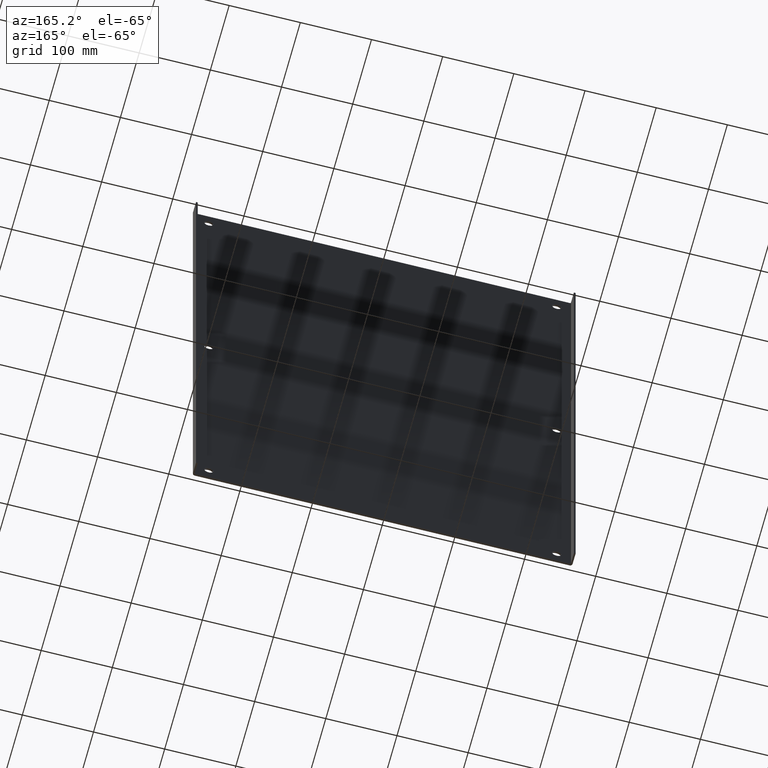
[diagram: clean part render]
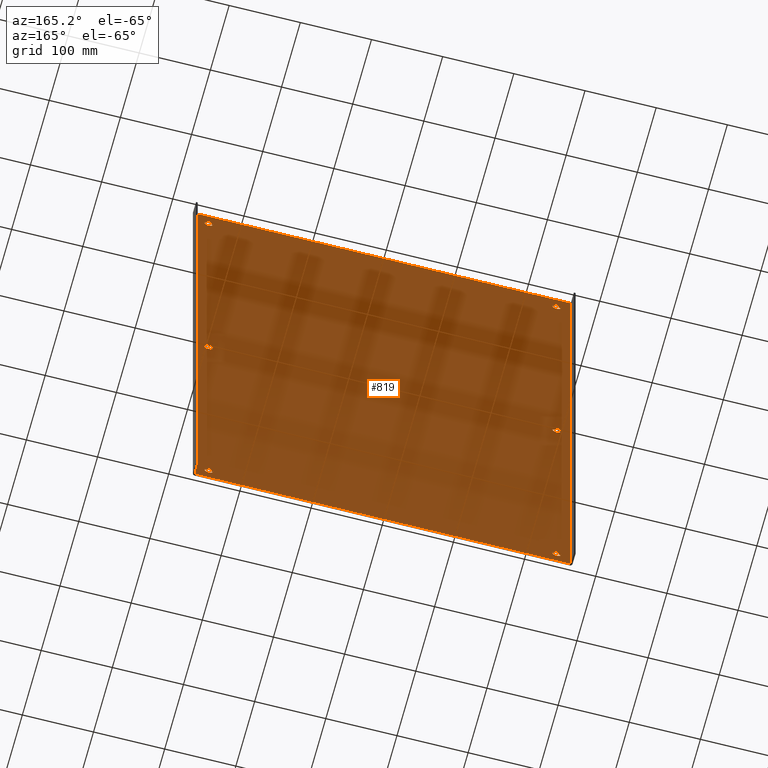
[diagram: same view with one face highlighted and labeled with its STEP entity id]
A machine part, auxiliary view. The second image highlights one B-rep face of the part: STEP entity #819.
In plain terms, the highlighted planar face has unit normal (0, -1, 0).
Its self-contained STEP definition (entity closure, byte-faithful):
#3 = ORIENTED_EDGE ( 'NONE', *, *, #547, .T. ) ;
#9 = VERTEX_POINT ( 'NONE', #845 ) ;
#12 = DIRECTION ( 'NONE',  ( 0.0000000000000000000, -1.000000000000000000, 0.0000000000000000000 ) ) ;
#16 = ORIENTED_EDGE ( 'NONE', *, *, #840, .F. ) ;
#17 = CARTESIAN_POINT ( 'NONE',  ( 10.50000000000000000, 0.09499999999999998723, 16.50000000000000000 ) ) ;
#21 = DIRECTION ( 'NONE',  ( 0.0000000000000000000, 0.0000000000000000000, -1.000000000000000000 ) ) ;
#39 = LINE ( 'NONE', #17, #582 ) ;
#52 = CIRCLE ( 'NONE', #866, 0.2500000000000008882 ) ;
#90 = DIRECTION ( 'NONE',  ( 0.0000000000000000000, -1.000000000000000000, 0.0000000000000000000 ) ) ;
#92 = ORIENTED_EDGE ( 'NONE', *, *, #471, .F. ) ;
#104 = CARTESIAN_POINT ( 'NONE',  ( -9.625000000000000000, 0.09499999999999994560, -15.87500000000000178 ) ) ;
#110 = EDGE_CURVE ( 'NONE', #721, #721, #867, .T. ) ;
#114 = FACE_BOUND ( 'NONE', #790, .T. ) ;
#130 = FACE_BOUND ( 'NONE', #264, .T. ) ;
#136 = DIRECTION ( 'NONE',  ( 0.0000000000000000000, -1.000000000000000000, 0.0000000000000000000 ) ) ;
#145 = ORIENTED_EDGE ( 'NONE', *, *, #317, .T. ) ;
#164 = CIRCLE ( 'NONE', #699, 0.2500000000000000000 ) ;
#177 = DIRECTION ( 'NONE',  ( 0.0000000000000000000, -1.000000000000000000, 0.0000000000000000000 ) ) ;
#179 = CARTESIAN_POINT ( 'NONE',  ( -10.50000000000000000, 0.09499999999999998723, -16.50000000000000000 ) ) ;
#189 = DIRECTION ( 'NONE',  ( -1.000000000000000000, -0.0000000000000000000, -1.040703997586390056E-16 ) ) ;
#192 = DIRECTION ( 'NONE',  ( 0.0000000000000000000, -1.000000000000000000, 0.0000000000000000000 ) ) ;
#198 = CARTESIAN_POINT ( 'NONE',  ( -9.625000000000000000, 0.09499999999999994560, 15.37500000000000000 ) ) ;
#218 = VERTEX_POINT ( 'NONE', #676 ) ;
#227 = VERTEX_POINT ( 'NONE', #600 ) ;
#241 = DIRECTION ( 'NONE',  ( 0.0000000000000000000, 0.0000000000000000000, -1.000000000000000000 ) ) ;
#246 = EDGE_CURVE ( 'NONE', #513, #218, #738, .T. ) ;
#248 = FACE_BOUND ( 'NONE', #951, .T. ) ;
#264 = EDGE_LOOP ( 'NONE', ( #145 ) ) ;
#292 = AXIS2_PLACEMENT_3D ( 'NONE', #695, #192, #530 ) ;
#294 = CIRCLE ( 'NONE', #401, 0.2500000000000008882 ) ;
#308 = LINE ( 'NONE', #1014, #548 ) ;
#317 = EDGE_CURVE ( 'NONE', #871, #871, #400, .T. ) ;
#323 = CIRCLE ( 'NONE', #808, 0.2500000000000008882 ) ;
#330 = DIRECTION ( 'NONE',  ( 0.0000000000000000000, 0.0000000000000000000, -1.000000000000000000 ) ) ;
#361 = AXIS2_PLACEMENT_3D ( 'NONE', #821, #177, #751 ) ;
#385 = AXIS2_PLACEMENT_3D ( 'NONE', #820, #12, #672 ) ;
#400 = CIRCLE ( 'NONE', #292, 0.2500000000000000000 ) ;
#401 = AXIS2_PLACEMENT_3D ( 'NONE', #637, #136, #955 ) ;
#407 = DIRECTION ( 'NONE',  ( 0.0000000000000000000, -1.000000000000000000, 0.0000000000000000000 ) ) ;
#412 = DIRECTION ( 'NONE',  ( -0.0000000000000000000, 0.0000000000000000000, 1.000000000000000000 ) ) ;
#416 = CARTESIAN_POINT ( 'NONE',  ( -9.625000000000000000, 0.09499999999999994560, 15.62500000000000178 ) ) ;
#426 = VERTEX_POINT ( 'NONE', #104 ) ;
#427 = CARTESIAN_POINT ( 'NONE',  ( 9.625000000000000000, 0.09499999999999994560, -5.463695987328543200E-16 ) ) ;
#460 = ORIENTED_EDGE ( 'NONE', *, *, #110, .T. ) ;
#466 = VERTEX_POINT ( 'NONE', #198 ) ;
#471 = EDGE_CURVE ( 'NONE', #227, #814, #308, .T. ) ;
#506 = PLANE ( 'NONE',  #385 ) ;
#513 = VERTEX_POINT ( 'NONE', #932 ) ;
#519 = CARTESIAN_POINT ( 'NONE',  ( 10.37499999999999822, 0.09499999999999998723, -16.50000000000000000 ) ) ;
#530 = DIRECTION ( 'NONE',  ( 0.0000000000000000000, 0.0000000000000000000, -1.000000000000000000 ) ) ;
#544 = DIRECTION ( 'NONE',  ( 0.0000000000000000000, -0.0000000000000000000, -1.000000000000000000 ) ) ;
#547 = EDGE_CURVE ( 'NONE', #426, #426, #294, .T. ) ;
#548 = VECTOR ( 'NONE', #544, 39.37007874015748143 ) ;
#554 = ORIENTED_EDGE ( 'NONE', *, *, #658, .T. ) ;
#571 = LINE ( 'NONE', #179, #1042 ) ;
#581 = DIRECTION ( 'NONE',  ( 0.0000000000000000000, -1.000000000000000000, 0.0000000000000000000 ) ) ;
#582 = VECTOR ( 'NONE', #189, 39.37007874015748143 ) ;
#600 = CARTESIAN_POINT ( 'NONE',  ( -10.37500000000000000, 0.09499999999999998723, 16.50000000000000000 ) ) ;
#603 = VECTOR ( 'NONE', #412, 39.37007874015748143 ) ;
#616 = EDGE_LOOP ( 'NONE', ( #916 ) ) ;
#620 = VERTEX_POINT ( 'NONE', #694 ) ;
#637 = CARTESIAN_POINT ( 'NONE',  ( -9.625000000000000000, 0.09499999999999994560, -15.62500000000000178 ) ) ;
#658 = EDGE_CURVE ( 'NONE', #620, #620, #323, .T. ) ;
#672 = DIRECTION ( 'NONE',  ( 0.0000000000000000000, -0.0000000000000000000, -1.000000000000000000 ) ) ;
#676 = CARTESIAN_POINT ( 'NONE',  ( 10.37500000000000000, 0.09499999999999998723, 16.50000000000000000 ) ) ;
#680 = ORIENTED_EDGE ( 'NONE', *, *, #696, .T. ) ;
#687 = FACE_OUTER_BOUND ( 'NONE', #747, .T. ) ;
#694 = CARTESIAN_POINT ( 'NONE',  ( 9.625000000000000000, 0.09499999999999994560, 15.37500000000000000 ) ) ;
#695 = CARTESIAN_POINT ( 'NONE',  ( -9.625000000000000000, 0.09499999999999994560, -5.463695987328543200E-16 ) ) ;
#696 = EDGE_CURVE ( 'NONE', #466, #466, #52, .T. ) ;
#699 = AXIS2_PLACEMENT_3D ( 'NONE', #427, #90, #21 ) ;
#721 = VERTEX_POINT ( 'NONE', #998 ) ;
#732 = CARTESIAN_POINT ( 'NONE',  ( 9.625000000000000000, 0.09499999999999994560, 15.62500000000000178 ) ) ;
#735 = FACE_BOUND ( 'NONE', #616, .T. ) ;
#738 = LINE ( 'NONE', #519, #603 ) ;
#747 = EDGE_LOOP ( 'NONE', ( #843, #929, #16, #92 ) ) ;
#751 = DIRECTION ( 'NONE',  ( 0.0000000000000000000, 0.0000000000000000000, -1.000000000000000000 ) ) ;
#790 = EDGE_LOOP ( 'NONE', ( #680 ) ) ;
#808 = AXIS2_PLACEMENT_3D ( 'NONE', #732, #407, #241 ) ;
#814 = VERTEX_POINT ( 'NONE', #968 ) ;
#819 = ADVANCED_FACE ( 'NONE', ( #687, #945, #248, #989, #114, #130, #735 ), #506, .F. ) ;
#820 = CARTESIAN_POINT ( 'NONE',  ( -10.50000000000000000, 0.09499999999999998723, -16.50000000000000000 ) ) ;
#821 = CARTESIAN_POINT ( 'NONE',  ( 9.625000000000000000, 0.09499999999999994560, -15.62500000000000178 ) ) ;
#840 = EDGE_CURVE ( 'NONE', #814, #513, #571, .T. ) ;
#843 = ORIENTED_EDGE ( 'NONE', *, *, #858, .F. ) ;
#845 = CARTESIAN_POINT ( 'NONE',  ( 9.625000000000000000, 0.09499999999999994560, -0.2500000000000005551 ) ) ;
#858 = EDGE_CURVE ( 'NONE', #218, #227, #39, .T. ) ;
#866 = AXIS2_PLACEMENT_3D ( 'NONE', #416, #581, #330 ) ;
#867 = CIRCLE ( 'NONE', #361, 0.2500000000000008882 ) ;
#871 = VERTEX_POINT ( 'NONE', #1007 ) ;
#916 = ORIENTED_EDGE ( 'NONE', *, *, #976, .T. ) ;
#929 = ORIENTED_EDGE ( 'NONE', *, *, #246, .F. ) ;
#932 = CARTESIAN_POINT ( 'NONE',  ( 10.37500000000000000, 0.09499999999999998723, -16.50000000000000000 ) ) ;
#945 = FACE_BOUND ( 'NONE', #1011, .T. ) ;
#948 = EDGE_LOOP ( 'NONE', ( #3 ) ) ;
#951 = EDGE_LOOP ( 'NONE', ( #460 ) ) ;
#955 = DIRECTION ( 'NONE',  ( 0.0000000000000000000, 0.0000000000000000000, -1.000000000000000000 ) ) ;
#968 = CARTESIAN_POINT ( 'NONE',  ( -10.37500000000000000, 0.09499999999999998723, -16.50000000000000000 ) ) ;
#976 = EDGE_CURVE ( 'NONE', #9, #9, #164, .T. ) ;
#978 = DIRECTION ( 'NONE',  ( 1.000000000000000000, -0.0000000000000000000, -1.040703997586390056E-16 ) ) ;
#989 = FACE_BOUND ( 'NONE', #948, .T. ) ;
#998 = CARTESIAN_POINT ( 'NONE',  ( 9.625000000000000000, 0.09499999999999994560, -15.87500000000000178 ) ) ;
#1007 = CARTESIAN_POINT ( 'NONE',  ( -9.625000000000000000, 0.09499999999999994560, -0.2500000000000005551 ) ) ;
#1011 = EDGE_LOOP ( 'NONE', ( #554 ) ) ;
#1014 = CARTESIAN_POINT ( 'NONE',  ( -10.37500000000000000, 0.09499999999999998723, -16.50000000000000000 ) ) ;
#1042 = VECTOR ( 'NONE', #978, 39.37007874015748143 ) ;